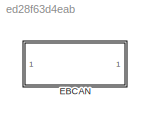
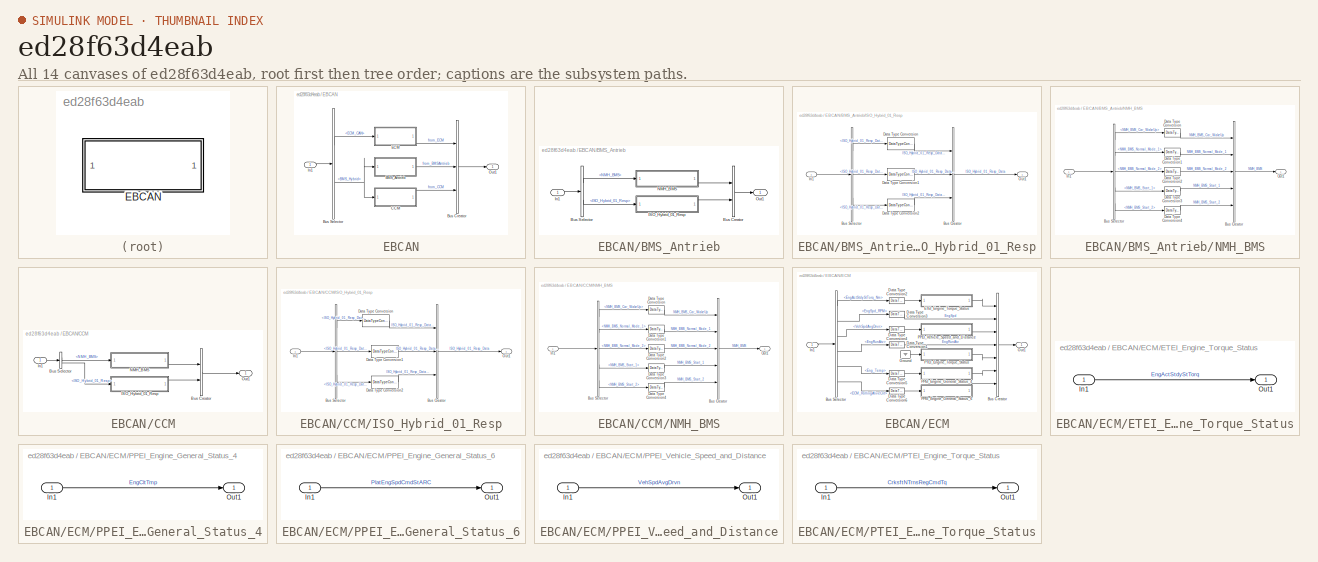
[diagram: thumbnail index - all 14 canvases of the model, root first then tree order]
MODEL slx_ed28f63d4eab
KIND library
CONFIG AbsTol = auto
CONFIG EnableMultiTasking = off
CONFIG FixedStep = auto
CONFIG MaxStep = auto
CONFIG MinStep = auto
CONFIG RelTol = 1e-3
CONFIG SampleTimeConstraint = Unconstrained
CONFIG Solver = VariableStepAuto
CONFIG SolverName = VariableStepAuto
CONFIG StartTime = 0.0
CONFIG StopTime = 10.0
BLOCK [SubSystem] EBCAN
  Ports = [1, 1]
  RequestExecContextInheritance = off
  Variant = off
BLOCK [SubSystem] EBCAN/BMS_Antrieb
  Ports = [1, 1]
  RequestExecContextInheritance = off
  Variant = off
BLOCK [BusCreator] EBCAN/BMS_Antrieb/Bus Creator
  DisplayOption = bar
  InheritFromInputs = on
  Inputs = 2
  Ports = [2, 1]
BLOCK [BusSelector] EBCAN/BMS_Antrieb/Bus Selector
  OutputAsBus = off
  OutputSignals = NMH_BMS,ISO_Hybrid_01_Resp
  Ports = [1, 2]
BLOCK [SubSystem] EBCAN/BMS_Antrieb/ISO_Hybrid_01_Resp
  Ports = [1, 1]
  RequestExecContextInheritance = off
  Variant = off
BLOCK [BusCreator] EBCAN/BMS_Antrieb/ISO_Hybrid_01_Resp/Bus Creator
  DisplayOption = bar
  InheritFromInputs = on
  Inputs = 3
  Ports = [3, 1]
BLOCK [BusSelector] EBCAN/BMS_Antrieb/ISO_Hybrid_01_Resp/Bus Selector
  OutputAsBus = off
  OutputSignals = ISO_Hybrid_01_Resp_Data_4,ISO_Hybrid_01_Resp_Data_5,ISO_Hybrid_01_Resp_Data_6
  Ports = [1, 3]
BLOCK [DataTypeConversion] EBCAN/BMS_Antrieb/ISO_Hybrid_01_Resp/Data Type Conversion
  RndMeth = Floor
  SaturateOnIntegerOverflow = off
BLOCK [DataTypeConversion] EBCAN/BMS_Antrieb/ISO_Hybrid_01_Resp/Data Type Conversion1
  RndMeth = Floor
  SaturateOnIntegerOverflow = off
BLOCK [DataTypeConversion] EBCAN/BMS_Antrieb/ISO_Hybrid_01_Resp/Data Type Conversion2
  RndMeth = Floor
  SaturateOnIntegerOverflow = off
BLOCK [Inport] EBCAN/BMS_Antrieb/ISO_Hybrid_01_Resp/In1
  IconDisplay = Port number
BLOCK [Outport] EBCAN/BMS_Antrieb/ISO_Hybrid_01_Resp/Out1
  IconDisplay = Port number
BLOCK [Inport] EBCAN/BMS_Antrieb/In1
  IconDisplay = Port number
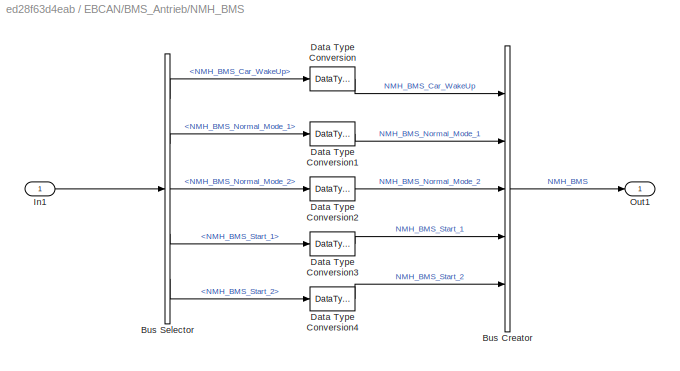
BLOCK [SubSystem] EBCAN/BMS_Antrieb/NMH_BMS
  Ports = [1, 1]
  RequestExecContextInheritance = off
  Variant = off
BLOCK [BusCreator] EBCAN/BMS_Antrieb/NMH_BMS/Bus Creator
  DisplayOption = bar
  InheritFromInputs = on
  Inputs = 5
  Ports = [5, 1]
BLOCK [BusSelector] EBCAN/BMS_Antrieb/NMH_BMS/Bus Selector
  OutputAsBus = off
  OutputSignals = NMH_BMS_Car_WakeUp,NMH_BMS_Normal_Mode_1,NMH_BMS_Normal_Mode_2,NMH_BMS_Start_1,NMH_BMS_Start_2
  Ports = [1, 5]
BLOCK [DataTypeConversion] EBCAN/BMS_Antrieb/NMH_BMS/Data Type Conversion
  RndMeth = Floor
  SaturateOnIntegerOverflow = off
BLOCK [DataTypeConversion] EBCAN/BMS_Antrieb/NMH_BMS/Data Type Conversion1
  RndMeth = Floor
  SaturateOnIntegerOverflow = off
BLOCK [DataTypeConversion] EBCAN/BMS_Antrieb/NMH_BMS/Data Type Conversion2
  RndMeth = Floor
  SaturateOnIntegerOverflow = off
BLOCK [DataTypeConversion] EBCAN/BMS_Antrieb/NMH_BMS/Data Type Conversion3
  RndMeth = Floor
  SaturateOnIntegerOverflow = off
BLOCK [DataTypeConversion] EBCAN/BMS_Antrieb/NMH_BMS/Data Type Conversion4
  RndMeth = Floor
  SaturateOnIntegerOverflow = off
BLOCK [Inport] EBCAN/BMS_Antrieb/NMH_BMS/In1
  IconDisplay = Port number
BLOCK [Outport] EBCAN/BMS_Antrieb/NMH_BMS/Out1
  IconDisplay = Port number
BLOCK [Outport] EBCAN/BMS_Antrieb/Out1
  IconDisplay = Port number
BLOCK [BusCreator] EBCAN/Bus Creator
  DisplayOption = bar
  InheritFromInputs = on
  Inputs = 3
  Ports = [3, 1]
BLOCK [BusSelector] EBCAN/Bus Selector
  OutputAsBus = off
  OutputSignals = ECM_CAN,BMS_CAN.BMS_Hybrid
  Ports = [1, 2]
BLOCK [SubSystem] EBCAN/CCM
  Ports = [1, 1]
  RequestExecContextInheritance = off
  Variant = off
BLOCK [BusCreator] EBCAN/CCM/Bus Creator
  DisplayOption = bar
  InheritFromInputs = on
  Inputs = 2
  Ports = [2, 1]
BLOCK [BusSelector] EBCAN/CCM/Bus Selector
  OutputAsBus = off
  OutputSignals = NMH_BMS,ISO_Hybrid_01_Resp
  Ports = [1, 2]
BLOCK [SubSystem] EBCAN/CCM/ISO_Hybrid_01_Resp
  Ports = [1, 1]
  RequestExecContextInheritance = off
  Variant = off
BLOCK [BusCreator] EBCAN/CCM/ISO_Hybrid_01_Resp/Bus Creator
  DisplayOption = bar
  InheritFromInputs = on
  Inputs = 3
  Ports = [3, 1]
BLOCK [BusSelector] EBCAN/CCM/ISO_Hybrid_01_Resp/Bus Selector
  OutputAsBus = off
  OutputSignals = ISO_Hybrid_01_Resp_Data_4,ISO_Hybrid_01_Resp_Data_5,ISO_Hybrid_01_Resp_Data_6
  Ports = [1, 3]
BLOCK [DataTypeConversion] EBCAN/CCM/ISO_Hybrid_01_Resp/Data Type Conversion
  RndMeth = Floor
  SaturateOnIntegerOverflow = off
BLOCK [DataTypeConversion] EBCAN/CCM/ISO_Hybrid_01_Resp/Data Type Conversion1
  RndMeth = Floor
  SaturateOnIntegerOverflow = off
BLOCK [DataTypeConversion] EBCAN/CCM/ISO_Hybrid_01_Resp/Data Type Conversion2
  RndMeth = Floor
  SaturateOnIntegerOverflow = off
BLOCK [Inport] EBCAN/CCM/ISO_Hybrid_01_Resp/In1
  IconDisplay = Port number
BLOCK [Outport] EBCAN/CCM/ISO_Hybrid_01_Resp/Out1
  IconDisplay = Port number
BLOCK [Inport] EBCAN/CCM/In1
  IconDisplay = Port number
BLOCK [SubSystem] EBCAN/CCM/NMH_BMS
  Ports = [1, 1]
  RequestExecContextInheritance = off
  Variant = off
BLOCK [BusCreator] EBCAN/CCM/NMH_BMS/Bus Creator
  DisplayOption = bar
  InheritFromInputs = on
  Inputs = 5
  Ports = [5, 1]
BLOCK [BusSelector] EBCAN/CCM/NMH_BMS/Bus Selector
  OutputAsBus = off
  OutputSignals = NMH_BMS_Car_WakeUp,NMH_BMS_Normal_Mode_1,NMH_BMS_Normal_Mode_2,NMH_BMS_Start_1,NMH_BMS_Start_2
  Ports = [1, 5]
BLOCK [DataTypeConversion] EBCAN/CCM/NMH_BMS/Data Type Conversion
  RndMeth = Floor
  SaturateOnIntegerOverflow = off
BLOCK [DataTypeConversion] EBCAN/CCM/NMH_BMS/Data Type Conversion1
  RndMeth = Floor
  SaturateOnIntegerOverflow = off
BLOCK [DataTypeConversion] EBCAN/CCM/NMH_BMS/Data Type Conversion2
  RndMeth = Floor
  SaturateOnIntegerOverflow = off
BLOCK [DataTypeConversion] EBCAN/CCM/NMH_BMS/Data Type Conversion3
  RndMeth = Floor
  SaturateOnIntegerOverflow = off
BLOCK [DataTypeConversion] EBCAN/CCM/NMH_BMS/Data Type Conversion4
  RndMeth = Floor
  SaturateOnIntegerOverflow = off
BLOCK [Inport] EBCAN/CCM/NMH_BMS/In1
  IconDisplay = Port number
BLOCK [Outport] EBCAN/CCM/NMH_BMS/Out1
  IconDisplay = Port number
BLOCK [Outport] EBCAN/CCM/Out1
  IconDisplay = Port number
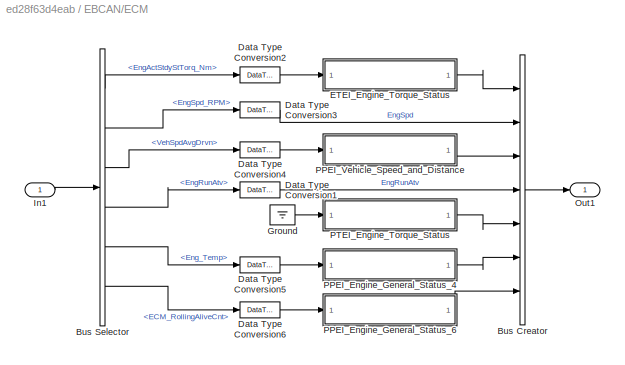
BLOCK [SubSystem] EBCAN/ECM
  Ports = [1, 1]
  RequestExecContextInheritance = off
  Variant = off
BLOCK [BusCreator] EBCAN/ECM/Bus Creator
  DisplayOption = bar
  InheritFromInputs = on
  Inputs = 7
  Ports = [7, 1]
BLOCK [BusSelector] EBCAN/ECM/Bus Selector
  OutputAsBus = off
  OutputSignals = Sensors_to_ECM.EngActStdyStTorq_Nm,Sensors_to_ECM.EngSpd_RPM,ECM_to_Actuators.VehSpdAvgDrvn,ECM_to_Actuators.EngRunAtv,ECM_to_Actuators.Eng_Temp,ECM_to_Actuators.ECM_RollingAliveCnt
  Ports = [1, 6]
BLOCK [DataTypeConversion] EBCAN/ECM/Data Type Conversion1
  RndMeth = Floor
  SaturateOnIntegerOverflow = off
BLOCK [DataTypeConversion] EBCAN/ECM/Data Type Conversion2
  RndMeth = Floor
  SaturateOnIntegerOverflow = off
BLOCK [DataTypeConversion] EBCAN/ECM/Data Type Conversion3
  RndMeth = Floor
  SaturateOnIntegerOverflow = off
BLOCK [DataTypeConversion] EBCAN/ECM/Data Type Conversion4
  RndMeth = Floor
  SaturateOnIntegerOverflow = off
BLOCK [DataTypeConversion] EBCAN/ECM/Data Type Conversion5
  RndMeth = Floor
  SaturateOnIntegerOverflow = off
BLOCK [DataTypeConversion] EBCAN/ECM/Data Type Conversion6
  RndMeth = Floor
  SaturateOnIntegerOverflow = off
BLOCK [SubSystem] EBCAN/ECM/ETEI_Engine_Torque_Status
  Ports = [1, 1]
  RequestExecContextInheritance = off
  Variant = off
BLOCK [Inport] EBCAN/ECM/ETEI_Engine_Torque_Status/In1
  IconDisplay = Port number
BLOCK [Outport] EBCAN/ECM/ETEI_Engine_Torque_Status/Out1
  IconDisplay = Port number
BLOCK [Ground] EBCAN/ECM/Ground
BLOCK [Inport] EBCAN/ECM/In1
  IconDisplay = Port number
BLOCK [Outport] EBCAN/ECM/Out1
  IconDisplay = Port number
BLOCK [SubSystem] EBCAN/ECM/PPEI_Engine_General_Status_4
  Ports = [1, 1]
  RequestExecContextInheritance = off
  Variant = off
BLOCK [Inport] EBCAN/ECM/PPEI_Engine_General_Status_4/In1
  IconDisplay = Port number
BLOCK [Outport] EBCAN/ECM/PPEI_Engine_General_Status_4/Out1
  IconDisplay = Port number
BLOCK [SubSystem] EBCAN/ECM/PPEI_Engine_General_Status_6
  Ports = [1, 1]
  RequestExecContextInheritance = off
  Variant = off
BLOCK [Inport] EBCAN/ECM/PPEI_Engine_General_Status_6/In1
  IconDisplay = Port number
BLOCK [Outport] EBCAN/ECM/PPEI_Engine_General_Status_6/Out1
  IconDisplay = Port number
BLOCK [SubSystem] EBCAN/ECM/PPEI_Vehicle_Speed_and_Distance
  Ports = [1, 1]
  RequestExecContextInheritance = off
  Variant = off
BLOCK [Inport] EBCAN/ECM/PPEI_Vehicle_Speed_and_Distance/In1
  IconDisplay = Port number
BLOCK [Outport] EBCAN/ECM/PPEI_Vehicle_Speed_and_Distance/Out1
  IconDisplay = Port number
BLOCK [SubSystem] EBCAN/ECM/PTEI_Engine_Torque_Status
  Ports = [1, 1]
  RequestExecContextInheritance = off
  Variant = off
BLOCK [Inport] EBCAN/ECM/PTEI_Engine_Torque_Status/In1
  IconDisplay = Port number
BLOCK [Outport] EBCAN/ECM/PTEI_Engine_Torque_Status/Out1
  IconDisplay = Port number
BLOCK [Inport] EBCAN/In1
  IconDisplay = Port number
BLOCK [Outport] EBCAN/Out1
  IconDisplay = Port number
LINE EBCAN/BMS_Antrieb/Bus Creator:1 -> EBCAN/BMS_Antrieb/Out1:1
LINE EBCAN/BMS_Antrieb/Bus Selector:1 -> EBCAN/BMS_Antrieb/NMH_BMS:1
LINE EBCAN/BMS_Antrieb/Bus Selector:2 -> EBCAN/BMS_Antrieb/ISO_Hybrid_01_Resp:1
LINE EBCAN/BMS_Antrieb/ISO_Hybrid_01_Resp/Bus Creator:1 -> EBCAN/BMS_Antrieb/ISO_Hybrid_01_Resp/Out1:1
LINE EBCAN/BMS_Antrieb/ISO_Hybrid_01_Resp/Bus Selector:1 -> EBCAN/BMS_Antrieb/ISO_Hybrid_01_Resp/Data Type Conversion:1
LINE EBCAN/BMS_Antrieb/ISO_Hybrid_01_Resp/Bus Selector:2 -> EBCAN/BMS_Antrieb/ISO_Hybrid_01_Resp/Data Type Conversion1:1
LINE EBCAN/BMS_Antrieb/ISO_Hybrid_01_Resp/Bus Selector:3 -> EBCAN/BMS_Antrieb/ISO_Hybrid_01_Resp/Data Type Conversion2:1
LINE EBCAN/BMS_Antrieb/ISO_Hybrid_01_Resp/Data Type Conversion1:1 -> EBCAN/BMS_Antrieb/ISO_Hybrid_01_Resp/Bus Creator:2
LINE EBCAN/BMS_Antrieb/ISO_Hybrid_01_Resp/Data Type Conversion2:1 -> EBCAN/BMS_Antrieb/ISO_Hybrid_01_Resp/Bus Creator:3
LINE EBCAN/BMS_Antrieb/ISO_Hybrid_01_Resp/Data Type Conversion:1 -> EBCAN/BMS_Antrieb/ISO_Hybrid_01_Resp/Bus Creator:1
LINE EBCAN/BMS_Antrieb/ISO_Hybrid_01_Resp/In1:1 -> EBCAN/BMS_Antrieb/ISO_Hybrid_01_Resp/Bus Selector:1
LINE EBCAN/BMS_Antrieb/ISO_Hybrid_01_Resp:1 -> EBCAN/BMS_Antrieb/Bus Creator:2
LINE EBCAN/BMS_Antrieb/In1:1 -> EBCAN/BMS_Antrieb/Bus Selector:1
LINE EBCAN/BMS_Antrieb/NMH_BMS/Bus Creator:1 -> EBCAN/BMS_Antrieb/NMH_BMS/Out1:1
LINE EBCAN/BMS_Antrieb/NMH_BMS/Bus Selector:1 -> EBCAN/BMS_Antrieb/NMH_BMS/Data Type Conversion:1
LINE EBCAN/BMS_Antrieb/NMH_BMS/Bus Selector:2 -> EBCAN/BMS_Antrieb/NMH_BMS/Data Type Conversion1:1
LINE EBCAN/BMS_Antrieb/NMH_BMS/Bus Selector:3 -> EBCAN/BMS_Antrieb/NMH_BMS/Data Type Conversion2:1
LINE EBCAN/BMS_Antrieb/NMH_BMS/Bus Selector:4 -> EBCAN/BMS_Antrieb/NMH_BMS/Data Type Conversion3:1
LINE EBCAN/BMS_Antrieb/NMH_BMS/Bus Selector:5 -> EBCAN/BMS_Antrieb/NMH_BMS/Data Type Conversion4:1
LINE EBCAN/BMS_Antrieb/NMH_BMS/Data Type Conversion1:1 -> EBCAN/BMS_Antrieb/NMH_BMS/Bus Creator:2
LINE EBCAN/BMS_Antrieb/NMH_BMS/Data Type Conversion2:1 -> EBCAN/BMS_Antrieb/NMH_BMS/Bus Creator:3
LINE EBCAN/BMS_Antrieb/NMH_BMS/Data Type Conversion3:1 -> EBCAN/BMS_Antrieb/NMH_BMS/Bus Creator:4
LINE EBCAN/BMS_Antrieb/NMH_BMS/Data Type Conversion4:1 -> EBCAN/BMS_Antrieb/NMH_BMS/Bus Creator:5
LINE EBCAN/BMS_Antrieb/NMH_BMS/Data Type Conversion:1 -> EBCAN/BMS_Antrieb/NMH_BMS/Bus Creator:1
LINE EBCAN/BMS_Antrieb/NMH_BMS/In1:1 -> EBCAN/BMS_Antrieb/NMH_BMS/Bus Selector:1
LINE EBCAN/BMS_Antrieb/NMH_BMS:1 -> EBCAN/BMS_Antrieb/Bus Creator:1
LINE EBCAN/BMS_Antrieb:1 -> EBCAN/Bus Creator:2
LINE EBCAN/Bus Creator:1 -> EBCAN/Out1:1
LINE EBCAN/Bus Selector:1 -> EBCAN/ECM:1
NET EBCAN/Bus Selector:2 -> EBCAN/BMS_Antrieb:1, EBCAN/CCM:1
LINE EBCAN/CCM/Bus Creator:1 -> EBCAN/CCM/Out1:1
LINE EBCAN/CCM/Bus Selector:1 -> EBCAN/CCM/NMH_BMS:1
LINE EBCAN/CCM/Bus Selector:2 -> EBCAN/CCM/ISO_Hybrid_01_Resp:1
LINE EBCAN/CCM/ISO_Hybrid_01_Resp/Bus Creator:1 -> EBCAN/CCM/ISO_Hybrid_01_Resp/Out1:1
LINE EBCAN/CCM/ISO_Hybrid_01_Resp/Bus Selector:1 -> EBCAN/CCM/ISO_Hybrid_01_Resp/Data Type Conversion:1
LINE EBCAN/CCM/ISO_Hybrid_01_Resp/Bus Selector:2 -> EBCAN/CCM/ISO_Hybrid_01_Resp/Data Type Conversion1:1
LINE EBCAN/CCM/ISO_Hybrid_01_Resp/Bus Selector:3 -> EBCAN/CCM/ISO_Hybrid_01_Resp/Data Type Conversion2:1
LINE EBCAN/CCM/ISO_Hybrid_01_Resp/Data Type Conversion1:1 -> EBCAN/CCM/ISO_Hybrid_01_Resp/Bus Creator:2
LINE EBCAN/CCM/ISO_Hybrid_01_Resp/Data Type Conversion2:1 -> EBCAN/CCM/ISO_Hybrid_01_Resp/Bus Creator:3
LINE EBCAN/CCM/ISO_Hybrid_01_Resp/Data Type Conversion:1 -> EBCAN/CCM/ISO_Hybrid_01_Resp/Bus Creator:1
LINE EBCAN/CCM/ISO_Hybrid_01_Resp/In1:1 -> EBCAN/CCM/ISO_Hybrid_01_Resp/Bus Selector:1
LINE EBCAN/CCM/ISO_Hybrid_01_Resp:1 -> EBCAN/CCM/Bus Creator:2
LINE EBCAN/CCM/In1:1 -> EBCAN/CCM/Bus Selector:1
LINE EBCAN/CCM/NMH_BMS/Bus Creator:1 -> EBCAN/CCM/NMH_BMS/Out1:1
LINE EBCAN/CCM/NMH_BMS/Bus Selector:1 -> EBCAN/CCM/NMH_BMS/Data Type Conversion:1
LINE EBCAN/CCM/NMH_BMS/Bus Selector:2 -> EBCAN/CCM/NMH_BMS/Data Type Conversion1:1
LINE EBCAN/CCM/NMH_BMS/Bus Selector:3 -> EBCAN/CCM/NMH_BMS/Data Type Conversion2:1
LINE EBCAN/CCM/NMH_BMS/Bus Selector:4 -> EBCAN/CCM/NMH_BMS/Data Type Conversion3:1
LINE EBCAN/CCM/NMH_BMS/Bus Selector:5 -> EBCAN/CCM/NMH_BMS/Data Type Conversion4:1
LINE EBCAN/CCM/NMH_BMS/Data Type Conversion1:1 -> EBCAN/CCM/NMH_BMS/Bus Creator:2
LINE EBCAN/CCM/NMH_BMS/Data Type Conversion2:1 -> EBCAN/CCM/NMH_BMS/Bus Creator:3
LINE EBCAN/CCM/NMH_BMS/Data Type Conversion3:1 -> EBCAN/CCM/NMH_BMS/Bus Creator:4
LINE EBCAN/CCM/NMH_BMS/Data Type Conversion4:1 -> EBCAN/CCM/NMH_BMS/Bus Creator:5
LINE EBCAN/CCM/NMH_BMS/Data Type Conversion:1 -> EBCAN/CCM/NMH_BMS/Bus Creator:1
LINE EBCAN/CCM/NMH_BMS/In1:1 -> EBCAN/CCM/NMH_BMS/Bus Selector:1
LINE EBCAN/CCM/NMH_BMS:1 -> EBCAN/CCM/Bus Creator:1
LINE EBCAN/CCM:1 -> EBCAN/Bus Creator:3
LINE EBCAN/ECM/Bus Creator:1 -> EBCAN/ECM/Out1:1
LINE EBCAN/ECM/Bus Selector:1 -> EBCAN/ECM/Data Type Conversion2:1
LINE EBCAN/ECM/Bus Selector:2 -> EBCAN/ECM/Data Type Conversion3:1
LINE EBCAN/ECM/Bus Selector:3 -> EBCAN/ECM/Data Type Conversion4:1
LINE EBCAN/ECM/Bus Selector:4 -> EBCAN/ECM/Data Type Conversion1:1
LINE EBCAN/ECM/Bus Selector:5 -> EBCAN/ECM/Data Type Conversion5:1
LINE EBCAN/ECM/Bus Selector:6 -> EBCAN/ECM/Data Type Conversion6:1
LINE EBCAN/ECM/Data Type Conversion1:1 -> EBCAN/ECM/Bus Creator:4
LINE EBCAN/ECM/Data Type Conversion2:1 -> EBCAN/ECM/ETEI_Engine_Torque_Status:1
LINE EBCAN/ECM/Data Type Conversion3:1 -> EBCAN/ECM/Bus Creator:2
LINE EBCAN/ECM/Data Type Conversion4:1 -> EBCAN/ECM/PPEI_Vehicle_Speed_and_Distance:1
LINE EBCAN/ECM/Data Type Conversion5:1 -> EBCAN/ECM/PPEI_Engine_General_Status_4:1
LINE EBCAN/ECM/Data Type Conversion6:1 -> EBCAN/ECM/PPEI_Engine_General_Status_6:1
LINE EBCAN/ECM/ETEI_Engine_Torque_Status/In1:1 -> EBCAN/ECM/ETEI_Engine_Torque_Status/Out1:1
LINE EBCAN/ECM/ETEI_Engine_Torque_Status:1 -> EBCAN/ECM/Bus Creator:1
LINE EBCAN/ECM/Ground:1 -> EBCAN/ECM/PTEI_Engine_Torque_Status:1
LINE EBCAN/ECM/In1:1 -> EBCAN/ECM/Bus Selector:1
LINE EBCAN/ECM/PPEI_Engine_General_Status_4/In1:1 -> EBCAN/ECM/PPEI_Engine_General_Status_4/Out1:1
LINE EBCAN/ECM/PPEI_Engine_General_Status_4:1 -> EBCAN/ECM/Bus Creator:6
LINE EBCAN/ECM/PPEI_Engine_General_Status_6/In1:1 -> EBCAN/ECM/PPEI_Engine_General_Status_6/Out1:1
LINE EBCAN/ECM/PPEI_Engine_General_Status_6:1 -> EBCAN/ECM/Bus Creator:7
LINE EBCAN/ECM/PPEI_Vehicle_Speed_and_Distance/In1:1 -> EBCAN/ECM/PPEI_Vehicle_Speed_and_Distance/Out1:1
LINE EBCAN/ECM/PPEI_Vehicle_Speed_and_Distance:1 -> EBCAN/ECM/Bus Creator:3
LINE EBCAN/ECM/PTEI_Engine_Torque_Status/In1:1 -> EBCAN/ECM/PTEI_Engine_Torque_Status/Out1:1
LINE EBCAN/ECM/PTEI_Engine_Torque_Status:1 -> EBCAN/ECM/Bus Creator:5
LINE EBCAN/ECM:1 -> EBCAN/Bus Creator:1
LINE EBCAN/In1:1 -> EBCAN/Bus Selector:1
note: NET lines group one-source signal fan-out (src -> all destinations, sorted); 1:1 wires keep LINE
